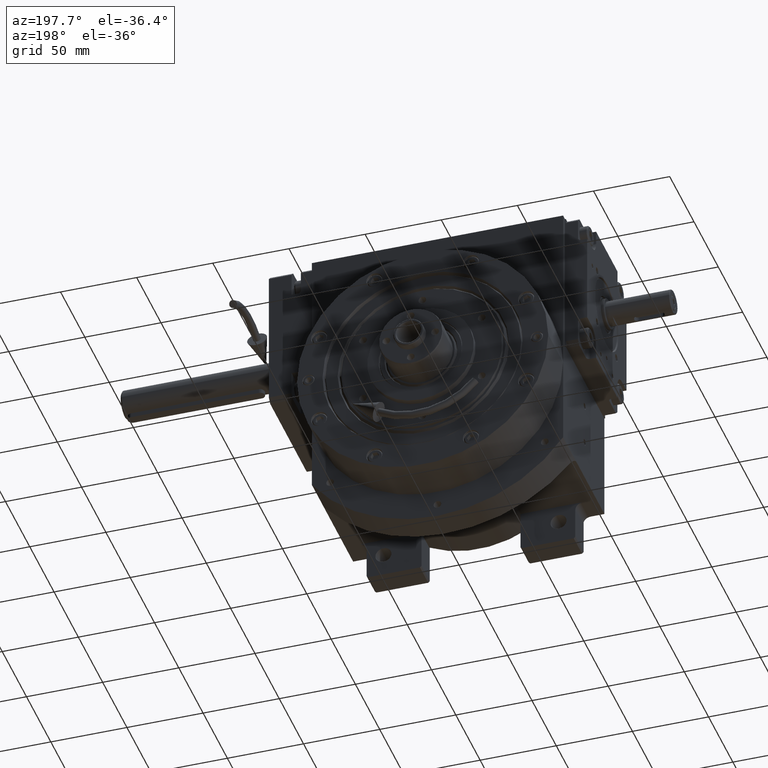
[diagram: clean part render]
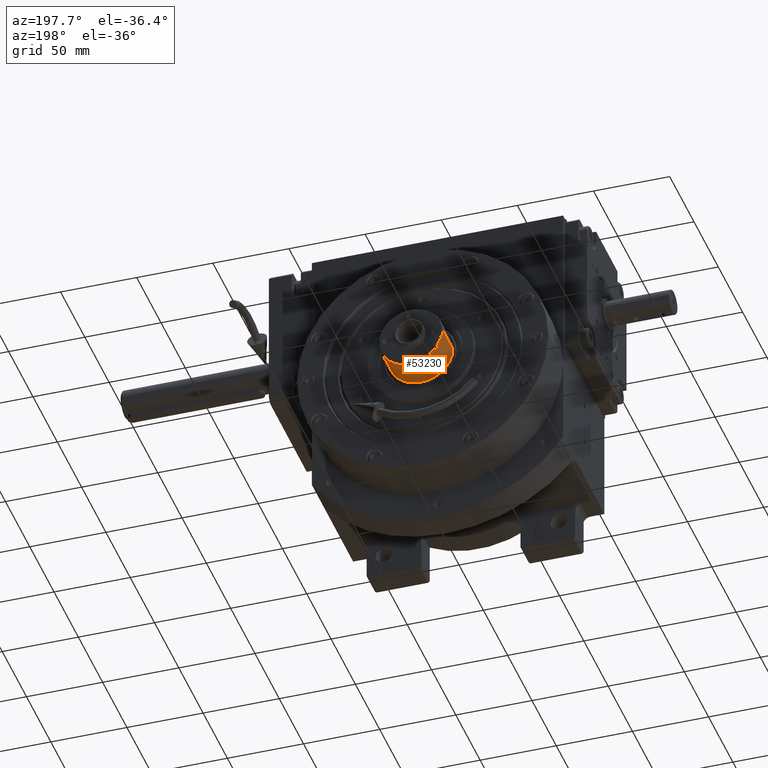
[diagram: same view with one face highlighted and labeled with its STEP entity id]
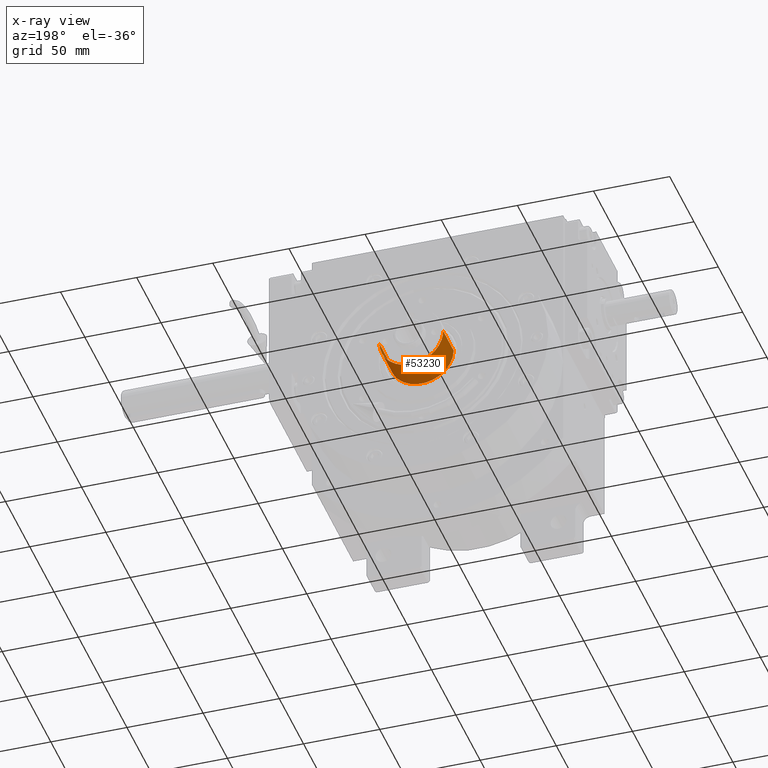
[diagram: x-ray of the same camera — body ghosted, the highlighted face saturated]
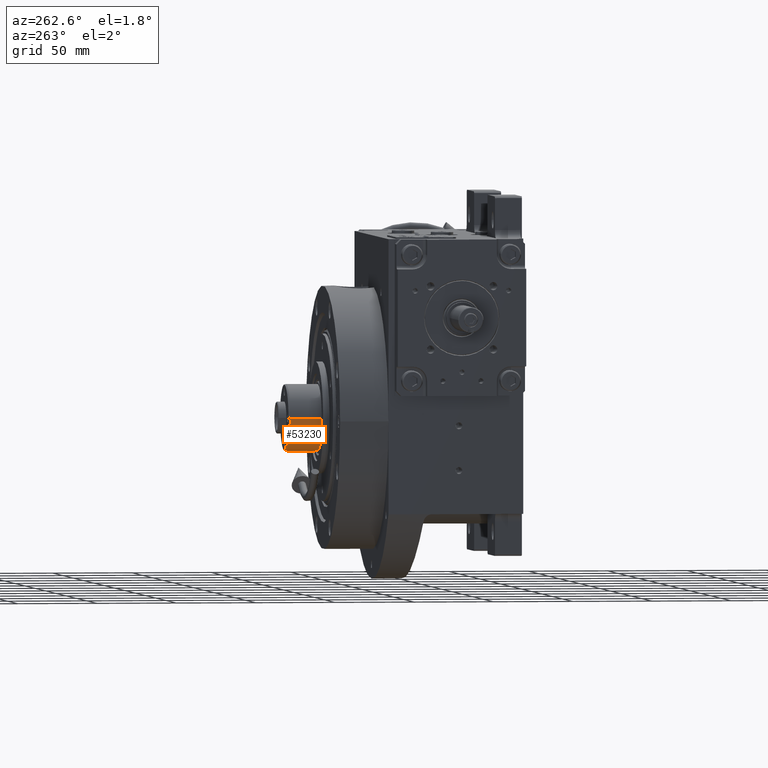
[diagram: same view with one face highlighted and labeled with its STEP entity id]
A machine part, auxiliary view. The second image highlights one B-rep face of the part: STEP entity #53230.
The next image is the same camera in x-ray: the body ghosted, the highlighted face saturated — about 0% of this face is hidden behind the body in this view.
A second angle (auxiliary view) of the same face is appended — the face is thin or edge-on in the first view.
In plain terms, the highlighted cylindrical surface (edge-blend (fillet) strip) has radius 21 mm, axis along (0, -1, 0).
Its self-contained STEP definition (entity closure, byte-faithful):
#1340 = CIRCLE ( 'NONE', #56303, 21.00000000000000000 ) ;
#1767 = EDGE_CURVE ( 'NONE', #63374, #65710, #1340, .T. ) ;
#2361 = ORIENTED_EDGE ( 'NONE', *, *, #27539, .F. ) ;
#3070 = DIRECTION ( 'NONE',  ( 0.000000000000000000, -1.000000000000000000, -6.608470384673551024E-16 ) ) ;
#4366 = CARTESIAN_POINT ( 'NONE',  ( 12.80974219998218722, -16.69720352763980031, -113.4999740863835882 ) ) ;
#5100 = CARTESIAN_POINT ( 'NONE',  ( -13.87731466064331087, -15.82106945391017661, -113.4999740863963353 ) ) ;
#5381 = CARTESIAN_POINT ( 'NONE',  ( 20.99992880263114969, -1.374442126088714522, -113.4999740863756443 ) ) ;
#7799 = CARTESIAN_POINT ( 'NONE',  ( -2.250745279497759518E-13, -20.99996440131314657, -113.4999870431858398 ) ) ;
#8350 = DIRECTION ( 'NONE',  ( 1.947291647291200927E-16, 8.327641074585962379E-16, -1.000000000000000000 ) ) ;
#8487 = FACE_OUTER_BOUND ( 'NONE', #23091, .T. ) ;
#9968 = CARTESIAN_POINT ( 'NONE',  ( 16.69720352764009519, -12.80974219998311447, -113.4999740863811724 ) ) ;
#10026 = CARTESIAN_POINT ( 'NONE',  ( -9.306143742789497963, -18.87542819367371649, -113.4999740863939479 ) ) ;
#11318 = ORIENTED_EDGE ( 'NONE', *, *, #53229, .F. ) ;
#14910 = CARTESIAN_POINT ( 'NONE',  ( 18.87542817454516353, -9.306143782527614761, -113.4999740863793107 ) ) ;
#15415 = ORIENTED_EDGE ( 'NONE', *, *, #45557, .F. ) ;
#15647 = CARTESIAN_POINT ( 'NONE',  ( -20.99992879274043744, -1.374442270767965102, -113.4999740864036539 ) ) ;
#16339 = CARTESIAN_POINT ( 'NONE',  ( -20.32828066913274512, -5.444915600157137270, -113.4999740864018491 ) ) ;
#18523 = CARTESIAN_POINT ( 'NONE',  ( 21.00000000000000000, 2.571592027864055829E-15, -91.99999999999887734 ) ) ;
#20171 = CARTESIAN_POINT ( 'NONE',  ( -2.250745279497759518E-13, -20.99996440131314657, -113.4999870431858398 ) ) ;
#20521 = CARTESIAN_POINT ( 'NONE',  ( 2.748850266386396068, -20.86456141610342385, -113.4999740863884483 ) ) ;
#21556 = CARTESIAN_POINT ( 'NONE',  ( 21.00000000000000000, 2.571592027864055829E-15, -113.4999967611475427 ) ) ;
#23091 = EDGE_LOOP ( 'NONE', ( #11318, #36485, #46285, #2361, #15415 ) ) ;
#24628 = CARTESIAN_POINT ( 'NONE',  ( -21.00000000000000000, 0.000000000000000000, -2.000000000000000000 ) ) ;
#25041 = VECTOR ( 'NONE', #45027, 1000.000000000000000 ) ;
#25436 = CARTESIAN_POINT ( 'NONE',  ( 18.22440179216640388, -10.52412847656110273, -113.4999740863799218 ) ) ;
#25800 = CARTESIAN_POINT ( 'NONE',  ( 6.766505884697346929, -19.92738063534055115, -113.4999740863866293 ) ) ;
#26134 = CARTESIAN_POINT ( 'NONE',  ( 19.92738063534307713, -6.766505884698689854, -113.4999740863780744 ) ) ;
#26523 = CARTESIAN_POINT ( 'NONE',  ( -6.766505854693790845, -19.92738064509245532, -113.4999740863926974 ) ) ;
#26804 = AXIS2_PLACEMENT_3D ( 'NONE', #60879, #45378, #55247 ) ;
#26822 = CARTESIAN_POINT ( 'NONE',  ( 20.86456141610740289, -2.748850266387290020, -113.4999740863762696 ) ) ;
#27236 = CARTESIAN_POINT ( 'NONE',  ( -18.87542812676908000, -9.306143878485523047, -113.4999740864000017 ) ) ;
#27539 = EDGE_CURVE ( 'NONE', #33774, #28557, #46778, .T. ) ;
#28557 = VERTEX_POINT ( 'NONE', #57982 ) ;
#29583 = LINE ( 'NONE', #45704, #31261 ) ;
#30241 = LINE ( 'NONE', #24628, #25041 ) ;
#31261 = VECTOR ( 'NONE', #61215, 1000.000000000000000 ) ;
#31445 = CARTESIAN_POINT ( 'NONE',  ( -20.86456139757946815, -2.748850403803111409, -113.4999740864030429 ) ) ;
#32497 = CARTESIAN_POINT ( 'NONE',  ( -1.374442119798112927, -20.99992880262624695, -113.4999740863902673 ) ) ;
#33774 = VERTEX_POINT ( 'NONE', #7799 ) ;
#35189 = CYLINDRICAL_SURFACE ( 'NONE', #26804, 21.00000000000000000 ) ;
#36485 = ORIENTED_EDGE ( 'NONE', *, *, #1767, .T. ) ;
#36644 = VERTEX_POINT ( 'NONE', #45709 ) ;
#37679 = CARTESIAN_POINT ( 'NONE',  ( 13.87731471306759445, -15.82106940847923937, -113.4999740863829771 ) ) ;
#41897 = CARTESIAN_POINT ( 'NONE',  ( 1.374442126088095462, -20.99992880262668393, -113.4999740863890452 ) ) ;
#42228 = CARTESIAN_POINT ( 'NONE',  ( 10.52412847655984685, -18.22440179216528122, -113.4999740863848388 ) ) ;
#42285 = CARTESIAN_POINT ( 'NONE',  ( -2.250745279497759518E-13, -20.99996440131314657, -113.4999870431858398 ) ) ;
#42656 = CARTESIAN_POINT ( 'NONE',  ( -18.22440174137914326, -10.52412856367336502, -113.4999740863993765 ) ) ;
#45027 = DIRECTION ( 'NONE',  ( 0.000000000000000000, 0.000000000000000000, -1.000000000000000000 ) ) ;
#45378 = DIRECTION ( 'NONE',  ( 0.000000000000000000, 0.000000000000000000, 1.000000000000000000 ) ) ;
#45557 = EDGE_CURVE ( 'NONE', #36644, #33774, #59701, .T. ) ;
#45704 = CARTESIAN_POINT ( 'NONE',  ( 21.00000000000000000, 2.571592027864055829E-15, -2.000000000000000000 ) ) ;
#45709 = CARTESIAN_POINT ( 'NONE',  ( 21.00000000000000000, 2.571592027864055829E-15, -113.4999967611475427 ) ) ;
#46285 = ORIENTED_EDGE ( 'NONE', *, *, #61338, .T. ) ;
#46778 = B_SPLINE_CURVE_WITH_KNOTS ( 'NONE', 3,
 ( #42285, #32497, #59566, #53926, #26523, #10026, #58148, #64803, #5100, #47606, #69055, #42656, #27236, #63756, #16339, #31445, #15647, #52890 ),
 .UNSPECIFIED., .F., .F.,
 ( 4, 2, 2, 2, 2, 2, 2, 2, 4 ),
 ( 0.5000000011441791958, 0.5625000010011568241, 0.6250000008581344524, 0.6875000007151120807, 0.7500000005720897089, 0.8125000004290672262, 0.8750000002860448545, 0.9375000001430223717, 1.000000000000000000 ),
 .UNSPECIFIED. ) ;
#46848 = CARTESIAN_POINT ( 'NONE',  ( 9.306143782526270058, -18.87542817454358612, -113.4999740863853646 ) ) ;
#47606 = CARTESIAN_POINT ( 'NONE',  ( -15.82106935414466520, -13.87731477438201111, -113.4999740863975717 ) ) ;
#52890 = CARTESIAN_POINT ( 'NONE',  ( -20.99998220040194852, -1.277815518700090979E-07, -113.4999935222963217 ) ) ;
#53229 = EDGE_CURVE ( 'NONE', #63374, #36644, #29583, .T. ) ;
#53230 = ADVANCED_FACE ( 'NONE', ( #8487 ), #35189, .T. ) ;
#53926 = CARTESIAN_POINT ( 'NONE',  ( -5.444915454016390655, -20.32828070828011136, -113.4999740863921005 ) ) ;
#55247 = DIRECTION ( 'NONE',  ( -1.000000000000000000, 0.000000000000000000, 0.000000000000000000 ) ) ;
#56303 = AXIS2_PLACEMENT_3D ( 'NONE', #56485, #8350, #3070 ) ;
#56485 = CARTESIAN_POINT ( 'NONE',  ( 0.000000000000000000, 0.000000000000000000, -91.99999999999887734 ) ) ;
#57761 = CARTESIAN_POINT ( 'NONE',  ( 15.82106940847917009, -13.87731471306827835, -113.4999740863817692 ) ) ;
#57982 = CARTESIAN_POINT ( 'NONE',  ( -20.99998220040194852, -1.277815518700090979E-07, -113.4999935222963217 ) ) ;
#58148 = CARTESIAN_POINT ( 'NONE',  ( -10.52412843265752684, -18.22440181703950657, -113.4999740863945021 ) ) ;
#59566 = CARTESIAN_POINT ( 'NONE',  ( -2.748850253806674804, -20.86456141734554492, -113.4999740863908499 ) ) ;
#59701 = B_SPLINE_CURVE_WITH_KNOTS ( 'NONE', 3,
 ( #21556, #5381, #26822, #64422, #26134, #14910, #25436, #9968, #57761, #37679, #4366, #42228, #46848, #25800, #68325, #20521, #41897, #20171 ),
 .UNSPECIFIED., .F., .F.,
 ( 4, 2, 2, 2, 2, 2, 2, 2, 4 ),
 ( 0.000000000000000000, 0.06250000014302241336, 0.1250000002860448267, 0.1875000004290671984, 0.2500000005720895979, 0.3125000007151119141, 0.3750000008581343414, 0.4375000010011568241, 0.5000000011441791958 ),
 .UNSPECIFIED. ) ;
#60879 = CARTESIAN_POINT ( 'NONE',  ( 0.000000000000000000, 0.000000000000000000, 0.000000000000000000 ) ) ;
#61215 = DIRECTION ( 'NONE',  ( 0.000000000000000000, 0.000000000000000000, -1.000000000000000000 ) ) ;
#61338 = EDGE_CURVE ( 'NONE', #65710, #28557, #30241, .T. ) ;
#63374 = VERTEX_POINT ( 'NONE', #18523 ) ;
#63756 = CARTESIAN_POINT ( 'NONE',  ( -19.92738059644455006, -6.766505997952364737, -113.4999740864012381 ) ) ;
#64422 = CARTESIAN_POINT ( 'NONE',  ( 20.32828070216465477, -5.444915478454912083, -113.4999740863775202 ) ) ;
#64803 = CARTESIAN_POINT ( 'NONE',  ( -12.80974214973553416, -16.69720356566494601, -113.4999740863957527 ) ) ;
#65710 = VERTEX_POINT ( 'NONE', #68170 ) ;
#68170 = CARTESIAN_POINT ( 'NONE',  ( -21.00000000000000000, 0.000000000000000000, -91.99999999999887734 ) ) ;
#68325 = CARTESIAN_POINT ( 'NONE',  ( 5.444915478453659752, -20.32828070216162430, -113.4999740863872262 ) ) ;
#69055 = CARTESIAN_POINT ( 'NONE',  ( -16.69720347357392853, -12.80974226977256336, -113.4999740863981685 ) ) ;